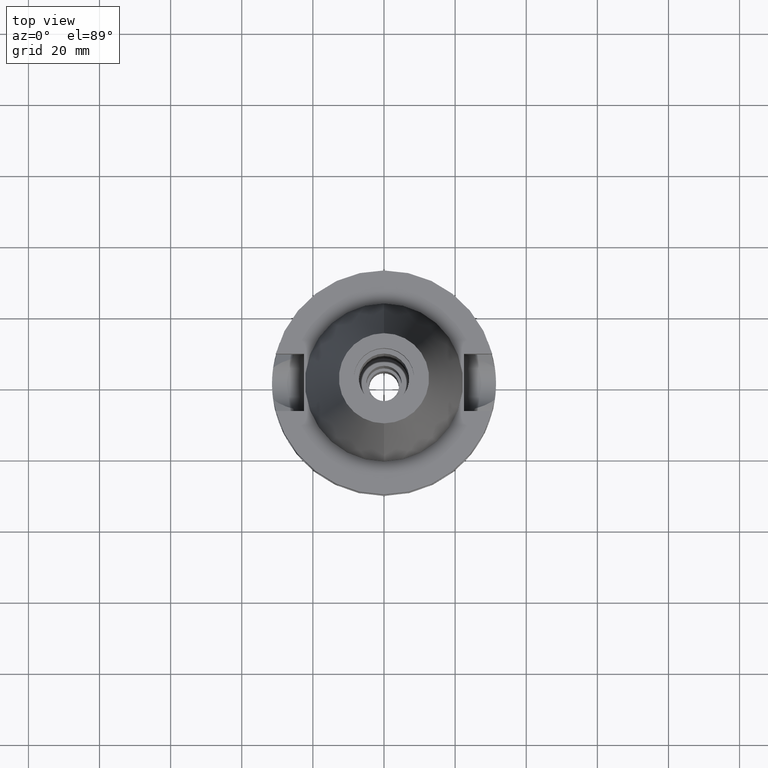
[diagram: clean part render]
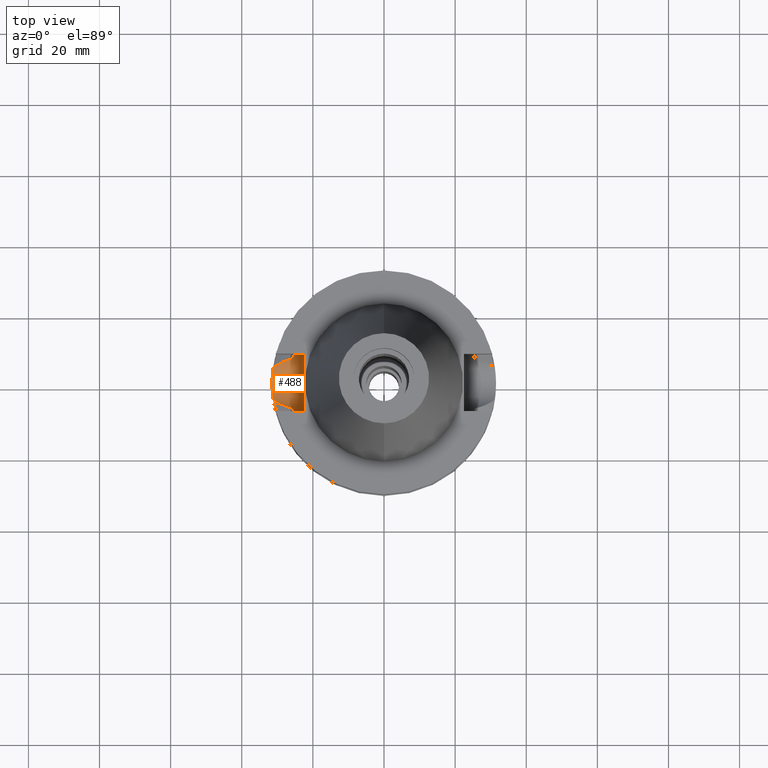
[diagram: same view with one face highlighted and labeled with its STEP entity id]
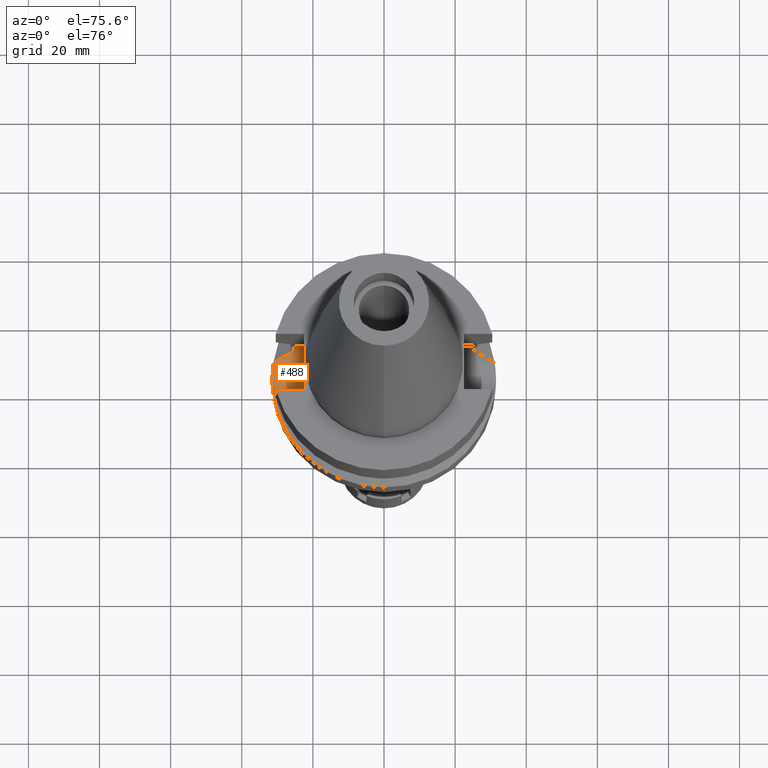
[diagram: same view with one face highlighted and labeled with its STEP entity id]
A machine part, top view. The second image highlights one B-rep face of the part: STEP entity #488.
A second angle (auxiliary view) of the same face is appended — the face is thin or edge-on in the first view.
In plain terms, the highlighted cylindrical surface (edge-blend (fillet) strip) has radius 8.05 mm, axis along (-1, 0, 0).
Its self-contained STEP definition (entity closure, byte-faithful):
#65 = LINE ( 'NONE', #2887, #3457 ) ;
#79 = CARTESIAN_POINT ( 'NONE',  ( -31.41073716363079882, 2.369955556988538881, -22.64326362460337450 ) ) ;
#101 = CARTESIAN_POINT ( 'NONE',  ( -28.33928145469826987, -6.117481670960036588, -20.18538924961303138 ) ) ;
#121 = CARTESIAN_POINT ( 'NONE',  ( -28.59666302462263943, 5.999764394395969092, -20.31769196316795600 ) ) ;
#152 = CARTESIAN_POINT ( 'NONE',  ( -25.44390372128112077, -7.408325733453185791, -18.11690357828252473 ) ) ;
#158 = CARTESIAN_POINT ( 'NONE',  ( -31.23226293288527700, 4.115296649409851071, -21.88293843198572830 ) ) ;
#182 = CARTESIAN_POINT ( 'NONE',  ( -27.47503639035013023, -6.467119500438006874, -19.74367307334543398 ) ) ;
#196 = CARTESIAN_POINT ( 'NONE',  ( -31.28458591552422874, -3.751599172497765089, -22.12699252593828447 ) ) ;
#241 = CARTESIAN_POINT ( 'NONE',  ( -25.28048322354059252, 7.947042364861427011, -16.24399973116642926 ) ) ;
#323 = EDGE_LOOP ( 'NONE', ( #2105, #2208, #1532, #2306, #1881, #2159, #2017, #3441 ) ) ;
#355 = CARTESIAN_POINT ( 'NONE',  ( -31.40749760860534678, 2.412424580020637865, -22.63005222543822370 ) ) ;
#414 = CARTESIAN_POINT ( 'NONE',  ( -31.17899877608999759, 4.485536235554000051, -21.63449434733000132 ) ) ;
#416 = CARTESIAN_POINT ( 'NONE',  ( -31.27846961443109208, 3.743983546180198019, -22.08754853576871469 ) ) ;
#426 = CARTESIAN_POINT ( 'NONE',  ( -25.24772266957999634, -8.049999999999979394, -15.58980474858205945 ) ) ;
#433 = CARTESIAN_POINT ( 'NONE',  ( -31.50032380699093437, 0.7535289836090494076, -23.00127312585620842 ) ) ;
#446 = CARTESIAN_POINT ( 'NONE',  ( -25.24772266958000344, -8.050000000000000711, -14.94999999999999929 ) ) ;
#460 = EDGE_CURVE ( 'NONE', #1517, #1454, #2845, .T. ) ;
#464 = CARTESIAN_POINT ( 'NONE',  ( -25.34384264181177215, -7.742472632649029407, -17.15618260535348583 ) ) ;
#474 = CARTESIAN_POINT ( 'NONE',  ( -29.61022471894146690, -5.536605760465048931, -20.83511835778340782 ) ) ;
#488 = ADVANCED_FACE ( 'NONE', ( #2788 ), #1108, .F. ) ;
#499 = CARTESIAN_POINT ( 'NONE',  ( -25.37569502948931444, -7.637838761477326877, -17.49780446183531524 ) ) ;
#543 = CARTESIAN_POINT ( 'NONE',  ( -25.29452346095226645, 7.902092865019969992, -16.48827265655049601 ) ) ;
#552 = DIRECTION ( 'NONE',  ( -1.000000000000000000, 1.616208268639000174E-14, -1.034373291929000154E-14 ) ) ;
#559 = CARTESIAN_POINT ( 'NONE',  ( -25.32118071774146983, 7.816100027254242022, -16.87651110713151681 ) ) ;
#622 = CARTESIAN_POINT ( 'NONE',  ( -31.49245606944947440, -0.7860991982199490025, -22.97124303091307596 ) ) ;
#627 = DIRECTION ( 'NONE',  ( 1.000000000000000000, 1.551559937893000172E-14, -3.620306521749999889E-14 ) ) ;
#694 = EDGE_CURVE ( 'NONE', #1895, #2126, #1359, .T. ) ;
#704 = CARTESIAN_POINT ( 'NONE',  ( -28.35398679389774657, 6.108383719173202664, -20.19375229573817521 ) ) ;
#705 = CARTESIAN_POINT ( 'NONE',  ( -31.37907245649661903, 2.757363126091596062, -22.51361630133210667 ) ) ;
#715 = CARTESIAN_POINT ( 'NONE',  ( -25.39161415870589877, -7.584927955021766088, -17.65164487468283383 ) ) ;
#724 = CARTESIAN_POINT ( 'NONE',  ( -31.17899877608999759, -4.485536235554000051, -21.63449434733000132 ) ) ;
#774 = CARTESIAN_POINT ( 'NONE',  ( -31.41408065394642790, -2.325228041221742536, -22.65689912745699885 ) ) ;
#867 = CARTESIAN_POINT ( 'NONE',  ( -25.53175183775000079, -7.097862220092999941, -18.74774300138999905 ) ) ;
#897 = AXIS2_PLACEMENT_3D ( 'NONE', #1205, #3452, #924 ) ;
#924 = DIRECTION ( 'NONE',  ( 0.0000000000000000000, -1.000000000000000000, 1.917893035551997704E-14 ) ) ;
#938 = CARTESIAN_POINT ( 'NONE',  ( -26.76072461299161276, 6.731212713658504931, -19.37874672983142332 ) ) ;
#959 = CARTESIAN_POINT ( 'NONE',  ( -28.71699761113990945, 5.944183205933405212, -20.37913875082373849 ) ) ;
#983 = CARTESIAN_POINT ( 'NONE',  ( -31.39044521733458382, 2.626578571218877833, -22.56039104642977122 ) ) ;
#1008 = CARTESIAN_POINT ( 'NONE',  ( -31.47056816806594171, -1.371798205039322704, -22.88470967409987722 ) ) ;
#1070 = CARTESIAN_POINT ( 'NONE',  ( -31.41604485789484968, -2.298564670172919211, -22.66490387661632511 ) ) ;
#1097 = CARTESIAN_POINT ( 'NONE',  ( -25.43786288019324360, 7.435590607929920992, -18.11653926700929418 ) ) ;
#1108 = CYLINDRICAL_SURFACE ( 'NONE', #2696, 8.050000000000000711 ) ;
#1123 = DIRECTION ( 'NONE',  ( -1.000000000000000000, 0.0000000000000000000, 0.0000000000000000000 ) ) ;
#1132 = CARTESIAN_POINT ( 'NONE',  ( -25.31950825842965003, 7.821518470897454556, -16.85441217853278317 ) ) ;
#1136 = CARTESIAN_POINT ( 'NONE',  ( -31.17899877608999759, 4.485536235554000051, -21.63449434733000132 ) ) ;
#1201 = CARTESIAN_POINT ( 'NONE',  ( -31.42474741543221128, -2.177058571075199289, -22.70031563427359345 ) ) ;
#1205 = CARTESIAN_POINT ( 'NONE',  ( -22.50000000000000000, 1.807578675540999863E-14, -14.94999999999999929 ) ) ;
#1244 = CARTESIAN_POINT ( 'NONE',  ( -25.53175183775000079, -7.097862220092999941, -18.74774300138999905 ) ) ;
#1262 = CARTESIAN_POINT ( 'NONE',  ( -27.56004134442627773, -6.434677965055947801, -19.78710078166791675 ) ) ;
#1277 = CARTESIAN_POINT ( 'NONE',  ( -31.33719342387562889, 3.200318897669427010, -22.33920407938842345 ) ) ;
#1296 = CARTESIAN_POINT ( 'NONE',  ( -27.58560374979457563, 6.426510778019117964, -19.80104007078707440 ) ) ;
#1325 = CARTESIAN_POINT ( 'NONE',  ( -25.27267964220301621, -7.973335155931463802, -16.24499043154087019 ) ) ;
#1359 = B_SPLINE_CURVE_WITH_KNOTS ( 'NONE', 3,
 ( #2927, #158, #416, #1277, #1543, #705, #983, #3169, #355, #79, #1769, #2648, #433, #3231, #622, #1008, #2946, #3531, #2867, #1201, #2883, #1070, #774, #2477, #196, #1648 ),
 .UNSPECIFIED., .F., .F.,
 ( 4, 2, 2, 1, 1, 2, 2, 2, 2, 2, 1, 1, 2, 2, 4 ),
 ( 0.0000000000000000000, 0.1249999999999969469, 0.1874999999999953093, 0.2187499999999945044, 0.2343749999999943379, 0.2421874999999946154, 0.2499999999999948930, 0.4999999999999955591, 0.6249999999999958922, 0.6874999999999961142, 0.7187499999999962252, 0.7343749999999964473, 0.7421874999999966693, 0.7499999999999967804, 1.000000000000000000 ),
 .UNSPECIFIED. ) ;
#1360 = CARTESIAN_POINT ( 'NONE',  ( -25.30212858955025723, 7.877670097770154811, -16.61040846294178408 ) ) ;
#1367 = B_SPLINE_CURVE_WITH_KNOTS ( 'NONE', 3,
 ( #3489, #2626, #938, #1296, #2132, #1518, #704, #121, #959, #2945, #2071, #414 ),
 .UNSPECIFIED., .F., .F.,
 ( 4, 2, 2, 2, 2, 4 ),
 ( 0.0000000000000000000, 0.2500000000000012212, 0.3750000000000018319, 0.4375000000000027756, 0.5000000000000036637, 1.000000000000000000 ),
 .UNSPECIFIED. ) ;
#1379 = CARTESIAN_POINT ( 'NONE',  ( -25.27268309164520588, 7.971812745161291680, -16.08115051883406110 ) ) ;
#1391 = CARTESIAN_POINT ( 'NONE',  ( -25.25396277509630139, 8.030907860994670244, -15.59359823563421266 ) ) ;
#1454 = VERTEX_POINT ( 'NONE', #3186 ) ;
#1517 = VERTEX_POINT ( 'NONE', #2684 ) ;
#1518 = CARTESIAN_POINT ( 'NONE',  ( -28.22995838840673599, 6.162224413297012759, -20.13039799712635158 ) ) ;
#1525 = CARTESIAN_POINT ( 'NONE',  ( -25.53175183775000079, 7.097862220092999941, -18.74774300138999905 ) ) ;
#1532 = ORIENTED_EDGE ( 'NONE', *, *, #3510, .T. ) ;
#1543 = CARTESIAN_POINT ( 'NONE',  ( -31.35500365821145863, 3.021264144827182641, -22.41390211744550953 ) ) ;
#1565 = EDGE_CURVE ( 'NONE', #2271, #1895, #1367, .T. ) ;
#1577 = CARTESIAN_POINT ( 'NONE',  ( -27.53382848281193773, -6.444715762803453707, -19.77370913905157579 ) ) ;
#1596 = CARTESIAN_POINT ( 'NONE',  ( -28.07541081923212190, -6.230506572260147813, -20.05047049609540011 ) ) ;
#1648 = CARTESIAN_POINT ( 'NONE',  ( -31.17899877608999759, -4.485536235554000051, -21.63449434733000132 ) ) ;
#1686 = CARTESIAN_POINT ( 'NONE',  ( -25.31202500689252233, 7.845732311880527554, -16.75278555881673270 ) ) ;
#1730 = VERTEX_POINT ( 'NONE', #2197 ) ;
#1753 = VECTOR ( 'NONE', #552, 1000.000000000000000 ) ;
#1769 = CARTESIAN_POINT ( 'NONE',  ( -31.41215830074744275, 2.351096289898846337, -22.64905788739021020 ) ) ;
#1810 = CARTESIAN_POINT ( 'NONE',  ( -27.73347004662754856, -6.367244246216491099, -19.87571519409162590 ) ) ;
#1822 = CARTESIAN_POINT ( 'NONE',  ( -25.32840508998330975, -7.792668837054367970, -16.96920308240288833 ) ) ;
#1881 = ORIENTED_EDGE ( 'NONE', *, *, #2857, .T. ) ;
#1895 = VERTEX_POINT ( 'NONE', #1136 ) ;
#1949 = CIRCLE ( 'NONE', #897, 8.050000000000000711 ) ;
#2017 = ORIENTED_EDGE ( 'NONE', *, *, #694, .T. ) ;
#2056 = CARTESIAN_POINT ( 'NONE',  ( -27.52508078565831440, -6.448057366626175124, -19.76924028649558096 ) ) ;
#2071 = CARTESIAN_POINT ( 'NONE',  ( -30.52801137258030195, 4.979419967434784766, -21.30308059179828817 ) ) ;
#2098 = CARTESIAN_POINT ( 'NONE',  ( -27.32406067024067653, -6.524101345422141485, -19.66652639413655379 ) ) ;
#2105 = ORIENTED_EDGE ( 'NONE', *, *, #2676, .T. ) ;
#2117 = CARTESIAN_POINT ( 'NONE',  ( -26.58023216407557854, -6.788970341768187922, -19.28597646493036422 ) ) ;
#2126 = VERTEX_POINT ( 'NONE', #2423 ) ;
#2132 = CARTESIAN_POINT ( 'NONE',  ( -27.84980230154798875, 6.322106607761971198, -19.93614084778489826 ) ) ;
#2143 = CARTESIAN_POINT ( 'NONE',  ( -25.53175183775000079, -7.097862220092999941, -18.74774300138999905 ) ) ;
#2159 = ORIENTED_EDGE ( 'NONE', *, *, #1565, .T. ) ;
#2197 = CARTESIAN_POINT ( 'NONE',  ( -25.24772266958000344, 8.050000000000000711, -14.94999999999999929 ) ) ;
#2199 = B_SPLINE_CURVE_WITH_KNOTS ( 'NONE', 3,
 ( #724, #3213, #474, #101, #1596, #1810, #2689, #1262, #1577, #2056, #2379, #182, #2098, #2965, #2117, #3515, #1244 ),
 .UNSPECIFIED., .F., .F.,
 ( 4, 2, 2, 1, 2, 2, 1, 1, 2, 4 ),
 ( 0.0000000000000000000, 0.5000000000000297540, 0.6250000000000369704, 0.6562500000000388578, 0.6640625000000389688, 0.6679687500000390799, 0.6718750000000391909, 0.6875000000000381917, 0.7500000000000310862, 1.000000000000000000 ),
 .UNSPECIFIED. ) ;
#2208 = ORIENTED_EDGE ( 'NONE', *, *, #460, .F. ) ;
#2218 = DIRECTION ( 'NONE',  ( 0.0000000000000000000, 0.0000000000000000000, -1.000000000000000000 ) ) ;
#2243 = CARTESIAN_POINT ( 'NONE',  ( -25.53175183775000079, 7.097862220092999941, -18.74774300138999905 ) ) ;
#2252 = B_SPLINE_CURVE_WITH_KNOTS ( 'NONE', 3,
 ( #2521, #3646, #1391, #1379, #241, #543, #1360, #1686, #3079, #1132, #559, #2731, #1097, #2243 ),
 .UNSPECIFIED., .F., .F.,
 ( 4, 2, 2, 1, 1, 2, 2, 4 ),
 ( 0.0000000000000000000, 0.2499999999999977796, 0.3749999999999973355, 0.4374999999999971689, 0.4687499999999970579, 0.4843749999999968914, 0.4999999999999967804, 1.000000000000000000 ),
 .UNSPECIFIED. ) ;
#2271 = VERTEX_POINT ( 'NONE', #1525 ) ;
#2288 = EDGE_CURVE ( 'NONE', #1730, #2852, #65, .T. ) ;
#2306 = ORIENTED_EDGE ( 'NONE', *, *, #2288, .F. ) ;
#2379 = CARTESIAN_POINT ( 'NONE',  ( -27.51079323042463187, -6.453506305951240307, -19.76194109495654772 ) ) ;
#2409 = CARTESIAN_POINT ( 'NONE',  ( -25.48480632956524516, -7.266730116910171233, -18.43213421359637394 ) ) ;
#2423 = CARTESIAN_POINT ( 'NONE',  ( -31.17899877608999759, -4.485536235554000051, -21.63449434733000132 ) ) ;
#2477 = CARTESIAN_POINT ( 'NONE',  ( -31.36242476481852748, -3.016548684993280993, -22.44626900665036118 ) ) ;
#2521 = CARTESIAN_POINT ( 'NONE',  ( -25.24772266958000344, 8.050000000000000711, -14.94999999999999929 ) ) ;
#2551 = CARTESIAN_POINT ( 'NONE',  ( -22.50000000000000000, -8.050000000000000711, -14.94999999999999929 ) ) ;
#2626 = CARTESIAN_POINT ( 'NONE',  ( -26.16776054639931104, 6.923034324531766259, -19.07449083936989709 ) ) ;
#2648 = CARTESIAN_POINT ( 'NONE',  ( -31.47164681449470791, 1.548077469606644607, -22.89150997831938028 ) ) ;
#2676 = EDGE_CURVE ( 'NONE', #3416, #1454, #2920, .T. ) ;
#2684 = CARTESIAN_POINT ( 'NONE',  ( -22.50000000000000000, -8.050000000000000711, -14.94999999999999929 ) ) ;
#2689 = CARTESIAN_POINT ( 'NONE',  ( -27.64722844858441064, -6.401144627291449396, -19.83164495923704251 ) ) ;
#2696 = AXIS2_PLACEMENT_3D ( 'NONE', #3129, #1123, #2218 ) ;
#2731 = CARTESIAN_POINT ( 'NONE',  ( -25.36814691286843981, 7.663833599050875023, -17.48802854147058738 ) ) ;
#2788 = FACE_OUTER_BOUND ( 'NONE', #323, .T. ) ;
#2845 = LINE ( 'NONE', #2551, #1753 ) ;
#2852 = VERTEX_POINT ( 'NONE', #3374 ) ;
#2857 = EDGE_CURVE ( 'NONE', #1730, #2271, #2252, .T. ) ;
#2867 = CARTESIAN_POINT ( 'NONE',  ( -31.43626029286639323, -2.006672135011833280, -22.74702249194544734 ) ) ;
#2883 = CARTESIAN_POINT ( 'NONE',  ( -31.41955969787373704, -2.249977568491270397, -22.67921356346705153 ) ) ;
#2887 = CARTESIAN_POINT ( 'NONE',  ( -25.24772266958000344, 8.050000000000000711, -14.94999999999999929 ) ) ;
#2920 = B_SPLINE_CURVE_WITH_KNOTS ( 'NONE', 3,
 ( #2143, #2409, #152, #715, #499, #2957, #464, #3223, #1822, #2939, #3244, #1325, #426, #446 ),
 .UNSPECIFIED., .F., .F.,
 ( 4, 2, 2, 1, 1, 2, 2, 4 ),
 ( 0.0000000000000000000, 0.2500000000000101030, 0.3750000000000152656, 0.4375000000000177636, 0.4687500000000178191, 0.4843750000000180411, 0.5000000000000182077, 1.000000000000000000 ),
 .UNSPECIFIED. ) ;
#2927 = CARTESIAN_POINT ( 'NONE',  ( -31.17899877608999759, 4.485536235554000051, -21.63449434733000132 ) ) ;
#2939 = CARTESIAN_POINT ( 'NONE',  ( -25.32546393109957350, -7.802212764474015572, -16.93200521438827622 ) ) ;
#2945 = CARTESIAN_POINT ( 'NONE',  ( -29.74543457553759751, 5.454852319211481948, -20.90434514493115259 ) ) ;
#2946 = CARTESIAN_POINT ( 'NONE',  ( -31.46146862952802792, -1.567358629209076204, -22.84847756273281050 ) ) ;
#2957 = CARTESIAN_POINT ( 'NONE',  ( -25.35408242312716354, -7.708967322931905564, -17.26962711324174293 ) ) ;
#2965 = CARTESIAN_POINT ( 'NONE',  ( -27.17723811091158126, -6.577612408065024674, -19.59144744633974256 ) ) ;
#3079 = CARTESIAN_POINT ( 'NONE',  ( -25.31648570732018300, 7.831303109279970087, -16.81376729956180682 ) ) ;
#3129 = CARTESIAN_POINT ( 'NONE',  ( -22.50000000000000000, 1.807578675540999863E-14, -14.94999999999999929 ) ) ;
#3169 = CARTESIAN_POINT ( 'NONE',  ( -31.40255557127908403, 2.476306052363054899, -22.60989025223392446 ) ) ;
#3186 = CARTESIAN_POINT ( 'NONE',  ( -25.24772266958000344, -8.050000000000000711, -14.94999999999999929 ) ) ;
#3213 = CARTESIAN_POINT ( 'NONE',  ( -30.47206760845583773, -5.021862747208770905, -21.27459995934923853 ) ) ;
#3223 = CARTESIAN_POINT ( 'NONE',  ( -25.33288764354210798, -7.778115188336431451, -17.02509724684072978 ) ) ;
#3231 = CARTESIAN_POINT ( 'NONE',  ( -31.49983371806498056, -0.3969849275429748192, -22.99934650678998338 ) ) ;
#3244 = CARTESIAN_POINT ( 'NONE',  ( -25.32415339823800693, -7.806463147621018450, -16.91521530248330762 ) ) ;
#3374 = CARTESIAN_POINT ( 'NONE',  ( -22.50000000000000000, 8.050000000000000711, -14.94999999999999929 ) ) ;
#3416 = VERTEX_POINT ( 'NONE', #867 ) ;
#3441 = ORIENTED_EDGE ( 'NONE', *, *, #3543, .T. ) ;
#3452 = DIRECTION ( 'NONE',  ( 1.000000000000000000, 0.0000000000000000000, 0.0000000000000000000 ) ) ;
#3457 = VECTOR ( 'NONE', #627, 1000.000000000000000 ) ;
#3489 = CARTESIAN_POINT ( 'NONE',  ( -25.53175183775000079, 7.097862220092999941, -18.74774300138999905 ) ) ;
#3510 = EDGE_CURVE ( 'NONE', #1517, #2852, #1949, .T. ) ;
#3515 = CARTESIAN_POINT ( 'NONE',  ( -26.07153713614411572, -6.949484491158151478, -19.02505630987587892 ) ) ;
#3531 = CARTESIAN_POINT ( 'NONE',  ( -31.44511396460612929, -1.860301245815608517, -22.78273863314768022 ) ) ;
#3543 = EDGE_CURVE ( 'NONE', #2126, #3416, #2199, .T. ) ;
#3646 = CARTESIAN_POINT ( 'NONE',  ( -25.24772266958000699, 8.050000000000020250, -15.26991016305875348 ) ) ;